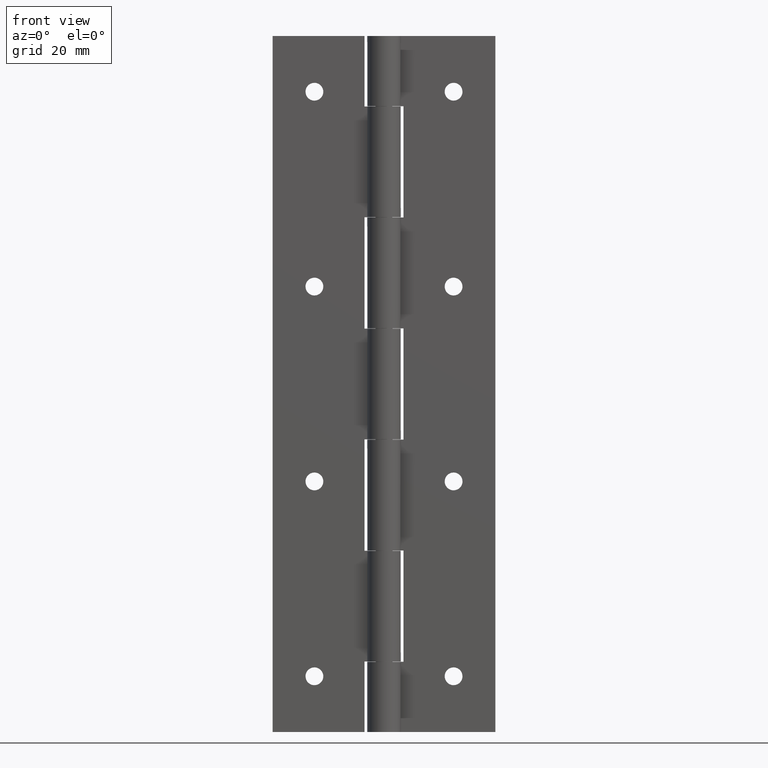
[diagram: clean part render]
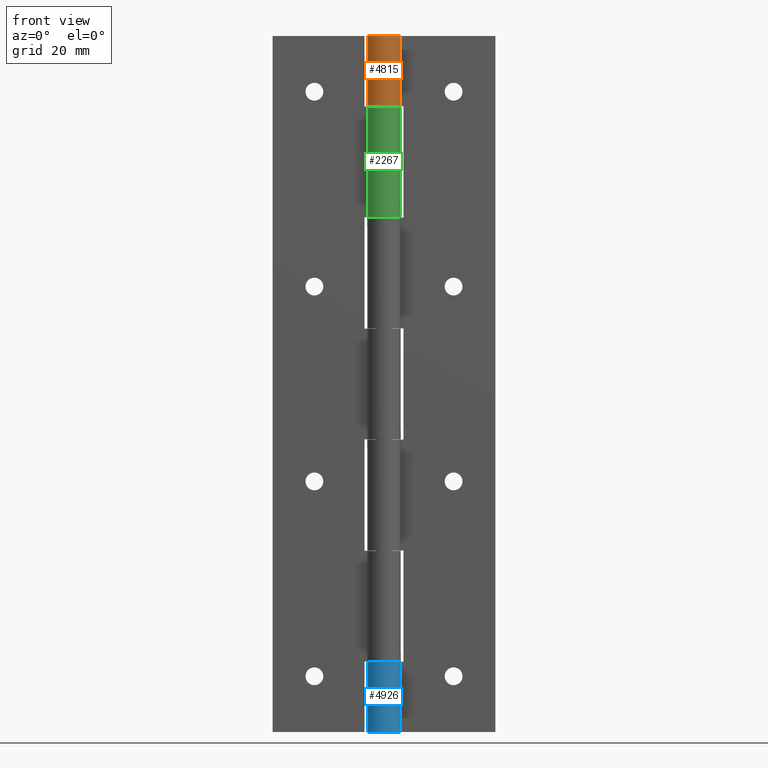
[diagram: same view with three faces highlighted in distinct colors, each labeled with its STEP entity id]
A machine part, front view with three faces highlighted in distinct colors.
Their STEP definitions:

[orange] entity #4815 — the highlighted face is a freeform B-spline surface patch.
#4520=CARTESIAN_POINT('',(2.891366458960195,0.799999999999990,112.400000000000010));
#4521=VERTEX_POINT('',#4520);
#4529=CARTESIAN_POINT('',(0.0,3.0,112.400000000000010));
#4530=VERTEX_POINT('',#4529);
#4531=CARTESIAN_POINT('',(0.0,3.0,112.400000000000010));
#4532=CARTESIAN_POINT('',(-2.154389185989602,3.0,112.399999999999990));
#4533=CARTESIAN_POINT('',(-2.842745313230503,0.958540079551194,112.400000000000010));
#4534=CARTESIAN_POINT('',(-3.531101440471405,-1.082919840897612,112.399999999999990));
#4535=CARTESIAN_POINT('',(-1.816590212458500,-2.387467277262661,112.400000000000010));
#4536=CARTESIAN_POINT('',(-0.102078984445597,-3.692014713627708,112.399999999999990));
#4537=CARTESIAN_POINT('',(1.681895628722574,-2.484195462133344,112.400000000000010));
#4538=CARTESIAN_POINT('',(3.465870241890748,-1.276376210638978,112.399999999999990));
#4539=CARTESIAN_POINT('',(2.891366458960195,0.799999999999989,112.400000000000010));
#4547=(BOUNDED_CURVE()B_SPLINE_CURVE(2,(#4531,#4532,#4533,#4534,#4535,#4536,#4537,#4538,#4539),.UNSPECIFIED.,.F.,.U.)B_SPLINE_CURVE_WITH_KNOTS((3,2,2,2,3),(0.0,0.250000000000000,0.500000000000000,0.750000000000000,1.0),.UNSPECIFIED.)CURVE()GEOMETRIC_REPRESENTATION_ITEM()RATIONAL_B_SPLINE_CURVE((1.0,0.812254073504836,1.0,0.812254073504836,1.0,0.812254073504836,1.0,0.812254073504836,1.0))REPRESENTATION_ITEM(''));
#4548=EDGE_CURVE('',#4530,#4521,#4547,.T.);
#4708=CARTESIAN_POINT('',(-5.510729E-016,3.0,125.0));
#4709=VERTEX_POINT('',#4708);
#4717=CARTESIAN_POINT('',(2.891366458960195,0.799999999999990,125.0));
#4718=VERTEX_POINT('',#4717);
#4719=CARTESIAN_POINT('',(2.891366458960195,0.799999999999991,125.0));
#4720=CARTESIAN_POINT('',(3.465870241890749,-1.276376210638973,125.000000000000070));
#4721=CARTESIAN_POINT('',(1.681895628722578,-2.484195462133341,125.0));
#4722=CARTESIAN_POINT('',(-0.102078984445593,-3.692014713627709,125.000000000000070));
#4723=CARTESIAN_POINT('',(-1.816590212458499,-2.387467277262662,125.0));
#4724=CARTESIAN_POINT('',(-3.531101440471402,-1.082919840897615,125.000000000000070));
#4725=CARTESIAN_POINT('',(-2.842745313230505,0.958540079551190,125.0));
#4726=CARTESIAN_POINT('',(-2.154389185989606,3.000000000000000,125.000000000000070));
#4727=CARTESIAN_POINT('',(0.0,3.0,125.0));
#4735=(BOUNDED_CURVE()B_SPLINE_CURVE(2,(#4719,#4720,#4721,#4722,#4723,#4724,#4725,#4726,#4727),.UNSPECIFIED.,.F.,.U.)B_SPLINE_CURVE_WITH_KNOTS((3,2,2,2,3),(0.0,0.250000000000000,0.500000000000000,0.750000000000000,1.0),.UNSPECIFIED.)CURVE()GEOMETRIC_REPRESENTATION_ITEM()RATIONAL_B_SPLINE_CURVE((1.0,0.812254073504836,1.0,0.812254073504836,1.0,0.812254073504836,1.0,0.812254073504836,1.0))REPRESENTATION_ITEM(''));
#4736=EDGE_CURVE('',#4718,#4709,#4735,.T.);
#4779=CARTESIAN_POINT('',(0.078530844923623,2.998971974926671,125.315000000000000));
#4780=CARTESIAN_POINT('',(0.078530844923623,2.998971974926671,112.077125000000000));
#4781=CARTESIAN_POINT('',(-3.291386702849371,3.087216371527285,125.315000000000010));
#4782=CARTESIAN_POINT('',(-3.291386702849371,3.087216371527285,112.077124999999980));
#4783=CARTESIAN_POINT('',(-2.987810873926178,-0.270159548505107,125.315000000000000));
#4784=CARTESIAN_POINT('',(-2.987810873926178,-0.270159548505107,112.077125000000000));
#4785=CARTESIAN_POINT('',(-2.684235045002985,-3.627535468537500,125.315000000000010));
#4786=CARTESIAN_POINT('',(-2.684235045002985,-3.627535468537500,112.077124999999980));
#4787=CARTESIAN_POINT('',(0.615196497494658,-2.936244756397243,125.315000000000000));
#4788=CARTESIAN_POINT('',(0.615196497494658,-2.936244756397243,112.077125000000000));
#4789=CARTESIAN_POINT('',(3.914628039992300,-2.244954044256985,125.315000000000010));
#4790=CARTESIAN_POINT('',(3.914628039992300,-2.244954044256985,112.077124999999980));
#4791=CARTESIAN_POINT('',(2.844970965618599,0.951913969215271,125.315000000000000));
#4792=CARTESIAN_POINT('',(2.844970965618599,0.951913969215271,112.077125000000000));
#4800=(BOUNDED_SURFACE()B_SPLINE_SURFACE(1,2,((#4779,#4781,#4783,#4785,#4787,#4789,#4791),(#4780,#4782,#4784,#4786,#4788,#4790,#4792)),.UNSPECIFIED.,.F.,.F.,.U.)B_SPLINE_SURFACE_WITH_KNOTS((2,2),(3,2,2,3),(0.0,13.237875000000020),(0.0,5.384624649813222,10.769249299626440,16.153873949439660),.UNSPECIFIED.)GEOMETRIC_REPRESENTATION_ITEM()RATIONAL_B_SPLINE_SURFACE(((1.0,0.664795865613938,1.0,0.664795865613938,1.0,0.664795865613938,1.0),(1.0,0.664795865613938,1.0,0.664795865613938,1.0,0.664795865613938,1.0)))REPRESENTATION_ITEM('')SURFACE());
#4801=ORIENTED_EDGE('',*,*,#4548,.T.);
#4802=CARTESIAN_POINT('',(2.891366458960195,0.799999999999990,125.0));
#4803=CARTESIAN_POINT('',(2.891366458960195,0.799999999999990,112.400000000000010));
#4804=QUASI_UNIFORM_CURVE('',1,(#4802,#4803),.UNSPECIFIED.,.F.,.U.);
#4805=EDGE_CURVE('',#4718,#4521,#4804,.T.);
#4806=ORIENTED_EDGE('',*,*,#4805,.F.);
#4807=ORIENTED_EDGE('',*,*,#4736,.T.);
#4808=CARTESIAN_POINT('',(-5.510729E-016,3.0,125.0));
#4809=CARTESIAN_POINT('',(0.0,3.0,112.400000000000010));
#4810=QUASI_UNIFORM_CURVE('',1,(#4808,#4809),.UNSPECIFIED.,.F.,.U.);
#4811=EDGE_CURVE('',#4709,#4530,#4810,.T.);
#4812=ORIENTED_EDGE('',*,*,#4811,.T.);
#4813=EDGE_LOOP('',(#4801,#4806,#4807,#4812));
#4814=FACE_OUTER_BOUND('',#4813,.T.);
#4815=ADVANCED_FACE('',(#4814),#4800,.T.);

[blue] entity #4926 — the highlighted face is a freeform B-spline surface patch.
#4341=CARTESIAN_POINT('',(0.0,3.0,12.600000000000000));
#4342=VERTEX_POINT('',#4341);
#4348=CARTESIAN_POINT('',(2.891366458960195,0.799999999999990,12.600000000000160));
#4349=VERTEX_POINT('',#4348);
#4350=CARTESIAN_POINT('',(2.891366458960195,0.799999999999991,12.600000000000160));
#4351=CARTESIAN_POINT('',(3.465870241890749,-1.276376210638973,12.600000000000161));
#4352=CARTESIAN_POINT('',(1.681895628722578,-2.484195462133341,12.600000000000160));
#4353=CARTESIAN_POINT('',(-0.102078984445593,-3.692014713627709,12.600000000000161));
#4354=CARTESIAN_POINT('',(-1.816590212458499,-2.387467277262662,12.600000000000160));
#4355=CARTESIAN_POINT('',(-3.531101440471402,-1.082919840897615,12.600000000000161));
#4356=CARTESIAN_POINT('',(-2.842745313230505,0.958540079551190,12.600000000000160));
#4357=CARTESIAN_POINT('',(-2.154389185989606,3.000000000000000,12.600000000000161));
#4358=CARTESIAN_POINT('',(0.0,3.0,12.600000000000000));
#4366=(BOUNDED_CURVE()B_SPLINE_CURVE(2,(#4350,#4351,#4352,#4353,#4354,#4355,#4356,#4357,#4358),.UNSPECIFIED.,.F.,.U.)B_SPLINE_CURVE_WITH_KNOTS((3,2,2,2,3),(0.0,0.250000000000000,0.500000000000000,0.750000000000000,1.0),.UNSPECIFIED.)CURVE()GEOMETRIC_REPRESENTATION_ITEM()RATIONAL_B_SPLINE_CURVE((1.0,0.812254073504836,1.0,0.812254073504836,1.0,0.812254073504836,1.0,0.812254073504836,1.0))REPRESENTATION_ITEM(''));
#4367=EDGE_CURVE('',#4349,#4342,#4366,.T.);
#4652=CARTESIAN_POINT('',(-5.510729E-016,3.0,0.0));
#4653=VERTEX_POINT('',#4652);
#4668=CARTESIAN_POINT('',(2.891366458960195,0.799999999999990,0.0));
#4669=VERTEX_POINT('',#4668);
#4675=CARTESIAN_POINT('',(2.891366458960195,0.799999999999991,0.0));
#4676=CARTESIAN_POINT('',(3.465870241890749,-1.276376210638973,0.0));
#4677=CARTESIAN_POINT('',(1.681895628722578,-2.484195462133341,0.0));
#4678=CARTESIAN_POINT('',(-0.102078984445593,-3.692014713627709,0.0));
#4679=CARTESIAN_POINT('',(-1.816590212458499,-2.387467277262662,0.0));
#4680=CARTESIAN_POINT('',(-3.531101440471402,-1.082919840897615,0.0));
#4681=CARTESIAN_POINT('',(-2.842745313230505,0.958540079551190,0.0));
#4682=CARTESIAN_POINT('',(-2.154389185989606,3.000000000000000,0.0));
#4683=CARTESIAN_POINT('',(0.0,3.0,0.0));
#4691=(BOUNDED_CURVE()B_SPLINE_CURVE(2,(#4675,#4676,#4677,#4678,#4679,#4680,#4681,#4682,#4683),.UNSPECIFIED.,.F.,.U.)B_SPLINE_CURVE_WITH_KNOTS((3,2,2,2,3),(0.0,0.250000000000000,0.500000000000000,0.750000000000000,1.0),.UNSPECIFIED.)CURVE()GEOMETRIC_REPRESENTATION_ITEM()RATIONAL_B_SPLINE_CURVE((1.0,0.812254073504836,1.0,0.812254073504836,1.0,0.812254073504836,1.0,0.812254073504836,1.0))REPRESENTATION_ITEM(''));
#4692=EDGE_CURVE('',#4669,#4653,#4691,.T.);
#4890=CARTESIAN_POINT('',(0.026179606495119,2.999885769192513,12.915000000000170));
#4891=CARTESIAN_POINT('',(0.026179606495119,2.999885769192513,-0.322875000000005));
#4892=CARTESIAN_POINT('',(-3.325084170610387,3.029131805107269,12.915000000000166));
#4893=CARTESIAN_POINT('',(-3.325084170610387,3.029131805107269,-0.322875000000005));
#4894=CARTESIAN_POINT('',(-2.984465244888098,-0.304905234548407,12.915000000000170));
#4895=CARTESIAN_POINT('',(-2.984465244888098,-0.304905234548407,-0.322875000000005));
#4896=CARTESIAN_POINT('',(-2.643846319165810,-3.638942274204082,12.915000000000166));
#4897=CARTESIAN_POINT('',(-2.643846319165810,-3.638942274204082,-0.322875000000005));
#4898=CARTESIAN_POINT('',(0.632268369622049,-2.932616017956574,12.915000000000170));
#4899=CARTESIAN_POINT('',(0.632268369622049,-2.932616017956574,-0.322875000000005));
#4900=CARTESIAN_POINT('',(3.908383058409907,-2.226289761709064,12.915000000000166));
#4901=CARTESIAN_POINT('',(3.908383058409907,-2.226289761709064,-0.322875000000005));
#4902=CARTESIAN_POINT('',(2.844970965618598,0.951913969215276,12.915000000000170));
#4903=CARTESIAN_POINT('',(2.844970965618598,0.951913969215276,-0.322875000000005));
#4911=(BOUNDED_SURFACE()B_SPLINE_SURFACE(1,2,((#4890,#4892,#4894,#4896,#4898,#4900,#4902),(#4891,#4893,#4895,#4897,#4899,#4901,#4903)),.UNSPECIFIED.,.F.,.F.,.U.)B_SPLINE_SURFACE_WITH_KNOTS((2,2),(3,2,2,3),(0.0,13.237875000000169),(0.0,5.363670823615206,10.727341647230411,16.091012470845619),.UNSPECIFIED.)GEOMETRIC_REPRESENTATION_ITEM()RATIONAL_B_SPLINE_SURFACE(((1.0,0.666966057782736,1.0,0.666966057782736,1.0,0.666966057782736,1.0),(1.0,0.666966057782736,1.0,0.666966057782736,1.0,0.666966057782736,1.0)))REPRESENTATION_ITEM('')SURFACE());
#4912=ORIENTED_EDGE('',*,*,#4367,.T.);
#4913=CARTESIAN_POINT('',(0.0,3.0,12.600000000000000));
#4914=CARTESIAN_POINT('',(-5.510729E-016,3.0,0.0));
#4915=QUASI_UNIFORM_CURVE('',1,(#4913,#4914),.UNSPECIFIED.,.F.,.U.);
#4916=EDGE_CURVE('',#4342,#4653,#4915,.T.);
#4917=ORIENTED_EDGE('',*,*,#4916,.T.);
#4918=ORIENTED_EDGE('',*,*,#4692,.F.);
#4919=CARTESIAN_POINT('',(2.891366458960195,0.799999999999990,12.600000000000160));
#4920=CARTESIAN_POINT('',(2.891366458960195,0.799999999999990,0.0));
#4921=QUASI_UNIFORM_CURVE('',1,(#4919,#4920),.UNSPECIFIED.,.F.,.U.);
#4922=EDGE_CURVE('',#4349,#4669,#4921,.T.);
#4923=ORIENTED_EDGE('',*,*,#4922,.F.);
#4924=EDGE_LOOP('',(#4912,#4917,#4918,#4923));
#4925=FACE_OUTER_BOUND('',#4924,.T.);
#4926=ADVANCED_FACE('',(#4925),#4911,.T.);

[green] entity #2267 — the highlighted face is a freeform B-spline surface patch.
#1896=CARTESIAN_POINT('',(-2.891366458960195,0.799999999999990,92.450000000000003));
#1897=VERTEX_POINT('',#1896);
#1898=CARTESIAN_POINT('',(0.0,3.0,92.450000000000003));
#1899=VERTEX_POINT('',#1898);
#1900=CARTESIAN_POINT('',(-2.891366458960195,0.799999999999991,92.450000000000003));
#1901=CARTESIAN_POINT('',(-3.465870241890749,-1.276376210638973,92.450000000000003));
#1902=CARTESIAN_POINT('',(-1.681895628722578,-2.484195462133341,92.450000000000003));
#1903=CARTESIAN_POINT('',(0.102078984445593,-3.692014713627709,92.450000000000003));
#1904=CARTESIAN_POINT('',(1.816590212458499,-2.387467277262662,92.450000000000003));
#1905=CARTESIAN_POINT('',(3.531101440471402,-1.082919840897615,92.450000000000003));
#1906=CARTESIAN_POINT('',(2.842745313230505,0.958540079551190,92.450000000000003));
#1907=CARTESIAN_POINT('',(2.154389185989606,3.000000000000000,92.450000000000003));
#1908=CARTESIAN_POINT('',(0.0,3.0,92.450000000000003));
#1916=(BOUNDED_CURVE()B_SPLINE_CURVE(2,(#1900,#1901,#1902,#1903,#1904,#1905,#1906,#1907,#1908),.UNSPECIFIED.,.F.,.U.)B_SPLINE_CURVE_WITH_KNOTS((3,2,2,2,3),(0.0,0.250000000000000,0.500000000000000,0.750000000000000,1.0),.UNSPECIFIED.)CURVE()GEOMETRIC_REPRESENTATION_ITEM()RATIONAL_B_SPLINE_CURVE((1.0,0.812254073504836,1.0,0.812254073504836,1.0,0.812254073504836,1.0,0.812254073504836,1.0))REPRESENTATION_ITEM(''));
#1917=EDGE_CURVE('',#1897,#1899,#1916,.T.);
#2078=CARTESIAN_POINT('',(0.0,3.0,112.349999999999990));
#2079=VERTEX_POINT('',#2078);
#2092=CARTESIAN_POINT('',(-2.891366458960195,0.799999999999990,112.349999999999990));
#2093=VERTEX_POINT('',#2092);
#2099=CARTESIAN_POINT('',(0.0,3.0,112.349999999999990));
#2100=CARTESIAN_POINT('',(2.154389185989602,3.0,112.350000000000010));
#2101=CARTESIAN_POINT('',(2.842745313230503,0.958540079551194,112.349999999999990));
#2102=CARTESIAN_POINT('',(3.531101440471405,-1.082919840897612,112.350000000000010));
#2103=CARTESIAN_POINT('',(1.816590212458500,-2.387467277262661,112.349999999999990));
#2104=CARTESIAN_POINT('',(0.102078984445597,-3.692014713627708,112.350000000000010));
#2105=CARTESIAN_POINT('',(-1.681895628722574,-2.484195462133344,112.349999999999990));
#2106=CARTESIAN_POINT('',(-3.465870241890748,-1.276376210638978,112.350000000000010));
#2107=CARTESIAN_POINT('',(-2.891366458960195,0.799999999999989,112.349999999999990));
#2115=(BOUNDED_CURVE()B_SPLINE_CURVE(2,(#2099,#2100,#2101,#2102,#2103,#2104,#2105,#2106,#2107),.UNSPECIFIED.,.F.,.U.)B_SPLINE_CURVE_WITH_KNOTS((3,2,2,2,3),(0.0,0.250000000000000,0.500000000000000,0.750000000000000,1.0),.UNSPECIFIED.)CURVE()GEOMETRIC_REPRESENTATION_ITEM()RATIONAL_B_SPLINE_CURVE((1.0,0.812254073504836,1.0,0.812254073504836,1.0,0.812254073504836,1.0,0.812254073504836,1.0))REPRESENTATION_ITEM(''));
#2116=EDGE_CURVE('',#2079,#2093,#2115,.T.);
#2231=CARTESIAN_POINT('',(-2.861150852244680,0.902117398512820,112.847500000000000));
#2232=CARTESIAN_POINT('',(-2.861150852244680,0.902117398512820,91.940062500000010));
#2233=CARTESIAN_POINT('',(-3.886805496497449,-2.350843540218950,112.847500000000030));
#2234=CARTESIAN_POINT('',(-3.886805496497449,-2.350843540218950,91.940062500000010));
#2235=CARTESIAN_POINT('',(-0.529536385766217,-2.952895395395788,112.847500000000000));
#2236=CARTESIAN_POINT('',(-0.529536385766217,-2.952895395395788,91.940062500000010));
#2237=CARTESIAN_POINT('',(2.827732724965015,-3.554947250572625,112.847500000000030));
#2238=CARTESIAN_POINT('',(2.827732724965015,-3.554947250572625,91.940062500000010));
#2239=CARTESIAN_POINT('',(2.996332646007367,-0.148292530056258,112.847500000000000));
#2240=CARTESIAN_POINT('',(2.996332646007367,-0.148292530056258,91.940062500000010));
#2241=CARTESIAN_POINT('',(3.164932567049720,3.258362190460110,112.847500000000030));
#2242=CARTESIAN_POINT('',(3.164932567049720,3.258362190460110,91.940062500000010));
#2243=CARTESIAN_POINT('',(-0.235377287183536,2.990752001199382,112.847500000000000));
#2244=CARTESIAN_POINT('',(-0.235377287183536,2.990752001199382,91.940062500000010));
#2252=(BOUNDED_SURFACE()B_SPLINE_SURFACE(1,2,((#2231,#2233,#2235,#2237,#2239,#2241,#2243),(#2232,#2234,#2236,#2238,#2240,#2242,#2244)),.UNSPECIFIED.,.F.,.F.,.U.)B_SPLINE_SURFACE_WITH_KNOTS((2,2),(3,2,2,3),(0.0,20.907437500000022),(0.0,5.426614549640453,10.853229099280910,16.279843648921361),.UNSPECIFIED.)GEOMETRIC_REPRESENTATION_ITEM()RATIONAL_B_SPLINE_SURFACE(((1.0,0.660438623999008,1.0,0.660438623999008,1.0,0.660438623999008,1.0),(1.0,0.660438623999008,1.0,0.660438623999008,1.0,0.660438623999008,1.0)))REPRESENTATION_ITEM('')SURFACE());
#2253=ORIENTED_EDGE('',*,*,#1917,.T.);
#2254=CARTESIAN_POINT('',(0.0,3.0,112.349999999999990));
#2255=CARTESIAN_POINT('',(0.0,3.0,92.450000000000003));
#2256=QUASI_UNIFORM_CURVE('',1,(#2254,#2255),.UNSPECIFIED.,.F.,.U.);
#2257=EDGE_CURVE('',#2079,#1899,#2256,.T.);
#2258=ORIENTED_EDGE('',*,*,#2257,.F.);
#2259=ORIENTED_EDGE('',*,*,#2116,.T.);
#2260=CARTESIAN_POINT('',(-2.891366458960195,0.799999999999990,112.349999999999990));
#2261=CARTESIAN_POINT('',(-2.891366458960195,0.799999999999990,92.450000000000003));
#2262=QUASI_UNIFORM_CURVE('',1,(#2260,#2261),.UNSPECIFIED.,.F.,.U.);
#2263=EDGE_CURVE('',#2093,#1897,#2262,.T.);
#2264=ORIENTED_EDGE('',*,*,#2263,.T.);
#2265=EDGE_LOOP('',(#2253,#2258,#2259,#2264));
#2266=FACE_OUTER_BOUND('',#2265,.T.);
#2267=ADVANCED_FACE('',(#2266),#2252,.T.);